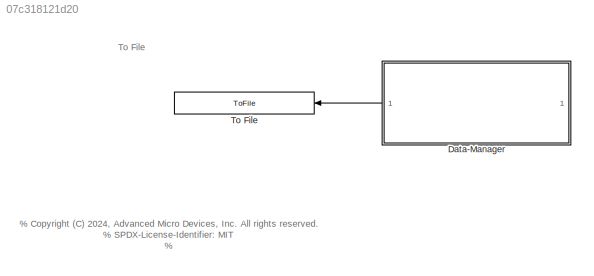
MODEL slx_07c318121d20
KIND model
CONFIG AbsTol = auto
CONFIG EnableMultiTasking = off
CONFIG FixedStep = auto
CONFIG MaxStep = auto
CONFIG MinStep = auto
CONFIG RelTol = 1e-3
CONFIG SampleTimeConstraint = Unconstrained
CONFIG SolverName = VariableStepAuto
CONFIG StartTime = 0.0
CONFIG StopTime = 10.0
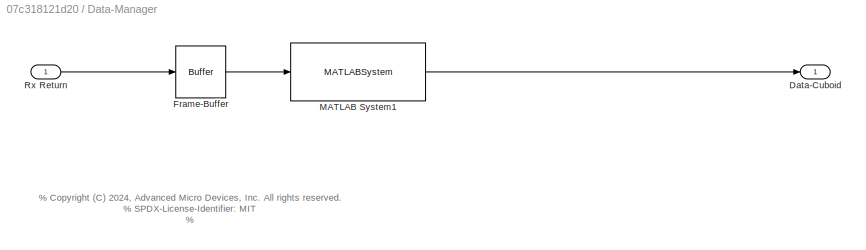
BLOCK [SubSystem] Data-Manager
  Ports = [1, 1]
  RequestExecContextInheritance = off
BLOCK [Outport] Data-Manager/Data-Cuboid
BLOCK [Buffer] Data-Manager/Frame-Buffer
  N = paramSTAP.numPulseInt*(paramSTAP.samplesPerFrame)
  ic = eps*randn(2*paramSTAP.numPulseInt*(paramSTAP.samplesPerFrame),paramSTAP.radarAntenna.NumElements)
BLOCK [MATLABSystem] Data-Manager/MATLAB System1
  MaskDisplay = disp('Matrix -> Cube');\nport_label('input',1,'X');\nport_label('output',1,'XC');
  MaskType = phased.internal.MatrixCubeConverter
  NumPages = paramSTAP.numPulseInt
  Ports = [1, 1]
  SimulateUsing = Interpreted execution
  System = phased.internal.MatrixCubeConverter
BLOCK [Inport] Data-Manager/Rx Return
BLOCK [ToFile] To File
  Filename = CPI_Cuboid_Data
  MatrixName = Cuboid
  NameLocation = top
  Ports = [1]
  SaveFormat = Timeseries
ANNOTATION (root): % <copyright redacted>
ANNOTATION (root): To File
ANNOTATION Data-Manager: % <copyright redacted>
LINE Data-Manager/Frame-Buffer:1 -> Data-Manager/MATLAB System1:1
LINE Data-Manager/MATLAB System1:1 -> Data-Manager/Data-Cuboid:1
LINE Data-Manager/Rx Return:1 -> Data-Manager/Frame-Buffer:1
LINE Data-Manager:1 -> To File:1
